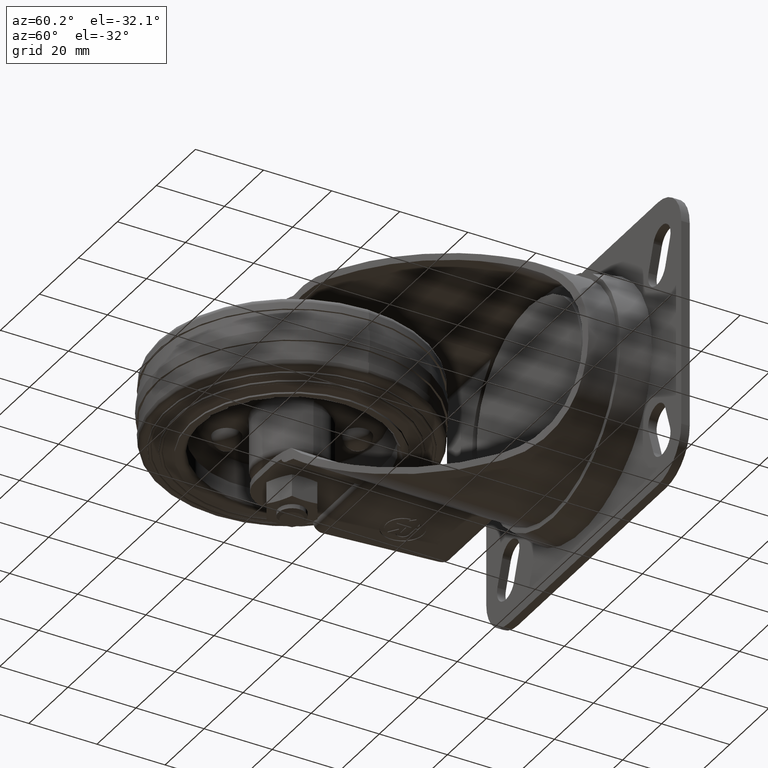
[diagram: clean part render]
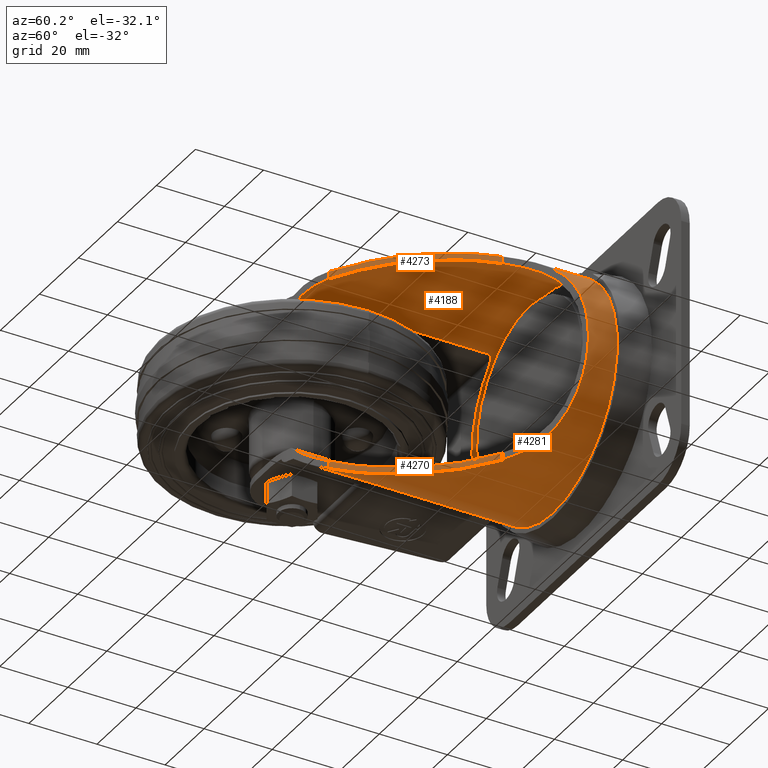
[diagram: same view with one multi-face feature highlighted, each face labeled with its STEP entity id]
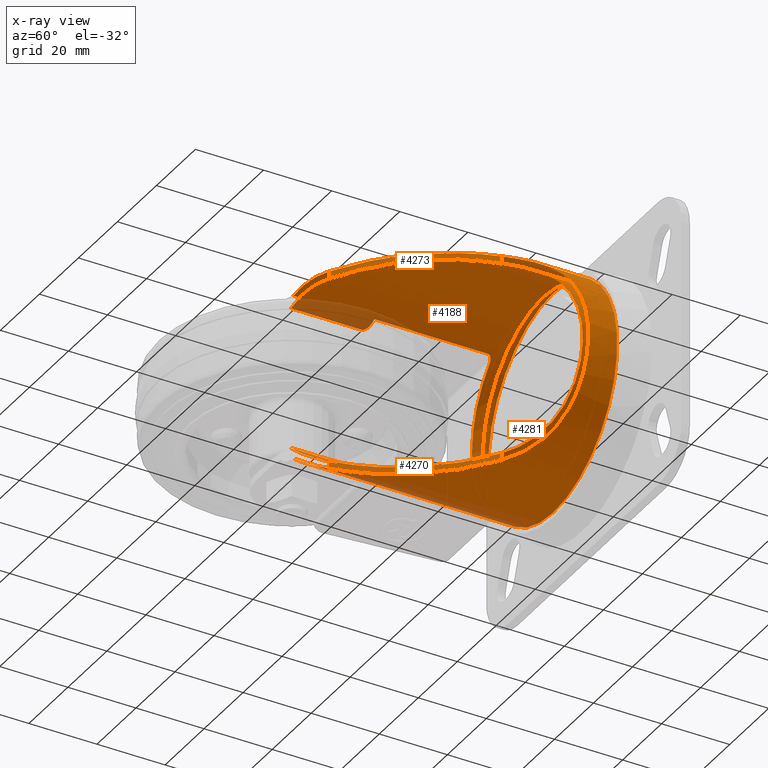
[diagram: x-ray of the same camera — body ghosted, the whole feature saturated]
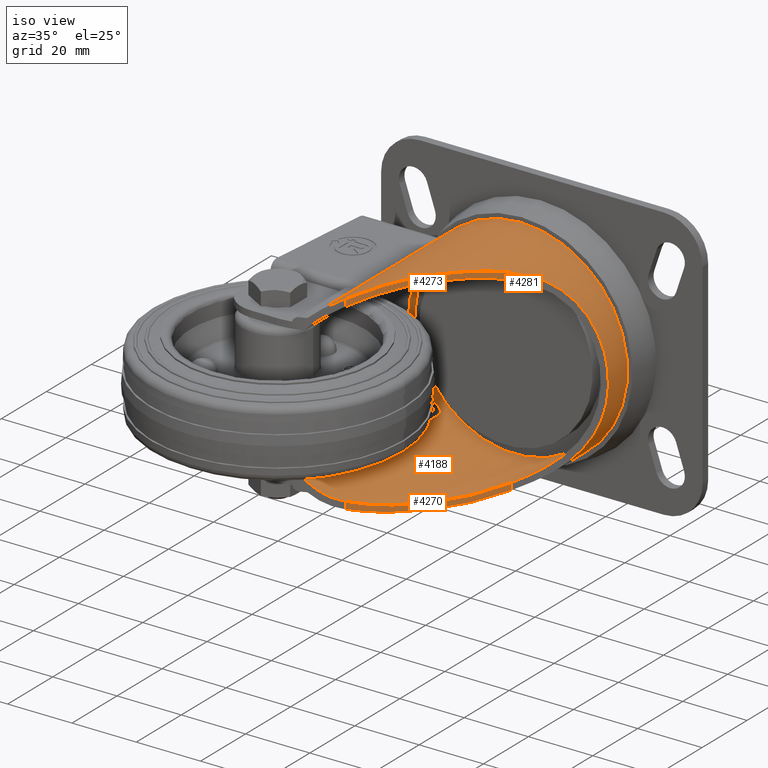
[diagram: same view with one multi-face feature highlighted, each face labeled with its STEP entity id]
A machine part, auxiliary view. The highlighted faces form ONE feature: a stepped (counterbored) hole: 2 coaxial cylindrical walls of radii 31 -> 33 mm joined by 2 annular planar shoulder face(s). The faces share edges in the B-rep.
The next image is the same camera in x-ray: the body ghosted and the whole hole feature saturated, so the bore chain is visible through the body.
A second angle (iso view) of the same feature is appended — it is thin or edge-on in the first view.
Their STEP definitions:
[1] entity #4281 (Cylinder):
#53=ELLIPSE('',#4664,54.834124657042,33.);
#54=ELLIPSE('',#4668,54.834124657042,33.);
#64=B_SPLINE_CURVE_WITH_KNOTS('',3,(#6593,#6594,#6595,#6596,#6597,#6598,
#6599,#6600,#6601,#6602),.UNSPECIFIED.,.F.,.F.,(4,2,2,2,4),(1.56747638439969,
1.63594912843019,1.73042866795403,1.77766843771595,1.82490820747787),
 .UNSPECIFIED.);
#65=B_SPLINE_CURVE_WITH_KNOTS('',3,(#6610,#6611,#6612,#6613,#6614,#6615,
#6616,#6617,#6618,#6619,#6620,#6621),.UNSPECIFIED.,.F.,.F.,(4,2,2,2,2,4),
(0.602938194164341,0.793785492321288,0.984632790478236,1.11757817290808,
1.184050864123,1.25052355533793),.UNSPECIFIED.);
#67=B_SPLINE_CURVE_WITH_KNOTS('',3,(#7041,#7042,#7043,#7044,#7045,#7046,
#7047,#7048,#7049,#7050),.UNSPECIFIED.,.F.,.F.,(4,2,2,2,4),(0.912454103738937,
0.959693873500858,1.00693364326278,1.10141318278662,1.16988592681711),
 .UNSPECIFIED.);
#68=B_SPLINE_CURVE_WITH_KNOTS('',3,(#7057,#7058,#7059,#7060,#7061,#7062,
#7063,#7064,#7065,#7066,#7067,#7068),.UNSPECIFIED.,.F.,.F.,(4,2,2,2,2,4),
(0.,0.0664726912149232,0.132945382429846,0.265890764859693,0.45673806301664,
0.647585361173588),.UNSPECIFIED.);
#69=B_SPLINE_CURVE_WITH_KNOTS('',3,(#7094,#7095,#7096,#7097,#7098,#7099,
#7100,#7101,#7102,#7103,#7104,#7105,#7106,#7107,#7108,#7109,#7110,#7111,
#7112,#7113,#7114,#7115,#7116,#7117,#7118,#7119,#7120,#7121,#7122,#7123,
#7124),.UNSPECIFIED.,.F.,.F.,(4,2,2,2,2,2,2,3,2,2,2,2,2,2,4),(-4.15139420282231,
-4.00994197767611,-3.38997232501408,-2.77000267235205,-2.07750200426404,
-1.38500133617603,-0.692500668088013,0.,0.692500668088012,1.38500133617602,
2.07750200426404,2.77000267235205,3.38997232501408,4.00994197767611,4.15139420282231),
 .UNSPECIFIED.);
#70=B_SPLINE_CURVE_WITH_KNOTS('',3,(#7129,#7130,#7131,#7132,#7133,#7134,
#7135,#7136,#7137,#7138),.UNSPECIFIED.,.F.,.F.,(4,2,2,2,4),(-17.3242357635549,
-17.146377594661,-16.6836098252983,-16.2629584876403,-16.2625434341869),
 .UNSPECIFIED.);
#72=B_SPLINE_CURVE_WITH_KNOTS('',3,(#7178,#7179,#7180,#7181,#7182,#7183,
#7184,#7185),.UNSPECIFIED.,.F.,.F.,(4,2,2,4),(11.277382834563,11.4240468690005,
11.8975363991511,12.3518239304848),.UNSPECIFIED.);
#172=CYLINDRICAL_SURFACE('',#4681,33.);
#290=FACE_BOUND('',#1038,.T.);
#408=CIRCLE('',#4559,33.);
#439=CIRCLE('',#4661,33.);
#691=FACE_OUTER_BOUND('',#1037,.T.);
#1037=EDGE_LOOP('',(#3547));
#1038=EDGE_LOOP('',(#3548,#3549,#3550,#3551,#3552,#3553,#3554,#3555,#3556,
#3557,#3558,#3559,#3560,#3561));
#1252=LINE('',#6646,#1582);
#1430=LINE('',#7173,#1760);
#1431=LINE('',#7176,#1761);
#1432=LINE('',#7186,#1762);
#1582=VECTOR('',#5289,32.93);
#1760=VECTOR('',#5703,21.1300815539318);
#1761=VECTOR('',#5708,21.1300815539318);
#1762=VECTOR('',#5711,32.93);
#1962=VERTEX_POINT('',#6585);
#1965=VERTEX_POINT('',#6591);
#1968=VERTEX_POINT('',#6607);
#1969=VERTEX_POINT('',#6609);
#1975=VERTEX_POINT('',#6638);
#1978=VERTEX_POINT('',#6644);
#2107=VERTEX_POINT('',#7038);
#2108=VERTEX_POINT('',#7040);
#2110=VERTEX_POINT('',#7055);
#2111=VERTEX_POINT('',#7075);
#2112=VERTEX_POINT('',#7077);
#2114=VERTEX_POINT('',#7088);
#2115=VERTEX_POINT('',#7090);
#2117=VERTEX_POINT('',#7128);
#2126=VERTEX_POINT('',#7172);
#2403=EDGE_CURVE('',#1962,#1965,#64,.T.);
#2406=EDGE_CURVE('',#1969,#1968,#65,.T.);
#2413=EDGE_CURVE('',#1975,#1975,#408,.T.);
#2416=EDGE_CURVE('',#1965,#1978,#1252,.T.);
#2606=EDGE_CURVE('',#2108,#2107,#67,.T.);
#2610=EDGE_CURVE('',#1978,#2110,#68,.T.);
#2612=EDGE_CURVE('',#2110,#1969,#439,.T.);
#2615=EDGE_CURVE('',#2112,#2111,#53,.T.);
#2622=EDGE_CURVE('',#2115,#2114,#54,.T.);
#2624=EDGE_CURVE('',#2112,#2114,#69,.T.);
#2626=EDGE_CURVE('',#2117,#2115,#70,.T.);
#2639=EDGE_CURVE('',#1962,#2126,#1430,.F.);
#2641=EDGE_CURVE('',#2117,#2107,#1431,.T.);
#2642=EDGE_CURVE('',#2111,#2126,#72,.T.);
#2643=EDGE_CURVE('',#1968,#2108,#1432,.F.);
#3547=ORIENTED_EDGE('',*,*,#2413,.F.);
#3548=ORIENTED_EDGE('',*,*,#2641,.F.);
#3549=ORIENTED_EDGE('',*,*,#2626,.T.);
#3550=ORIENTED_EDGE('',*,*,#2622,.T.);
#3551=ORIENTED_EDGE('',*,*,#2624,.F.);
#3552=ORIENTED_EDGE('',*,*,#2615,.T.);
#3553=ORIENTED_EDGE('',*,*,#2642,.T.);
#3554=ORIENTED_EDGE('',*,*,#2639,.F.);
#3555=ORIENTED_EDGE('',*,*,#2403,.T.);
#3556=ORIENTED_EDGE('',*,*,#2416,.T.);
#3557=ORIENTED_EDGE('',*,*,#2610,.T.);
#3558=ORIENTED_EDGE('',*,*,#2612,.T.);
#3559=ORIENTED_EDGE('',*,*,#2406,.T.);
#3560=ORIENTED_EDGE('',*,*,#2643,.T.);
#3561=ORIENTED_EDGE('',*,*,#2606,.T.);
#4281=ADVANCED_FACE('',(#691,#290),#172,.T.);
#4559=AXIS2_PLACEMENT_3D('',#6639,#5283,#5284);
#4661=AXIS2_PLACEMENT_3D('',#7071,#5650,#5651);
#4664=AXIS2_PLACEMENT_3D('',#7078,#5658,#5659);
#4668=AXIS2_PLACEMENT_3D('',#7091,#5672,#5673);
#4681=AXIS2_PLACEMENT_3D('',#7177,#5709,#5710);
#5283=DIRECTION('center_axis',(0.,1.,0.));
#5284=DIRECTION('ref_axis',(0.,0.,1.));
#5289=DIRECTION('',(0.,1.,0.));
#5650=DIRECTION('center_axis',(0.,1.,0.));
#5651=DIRECTION('ref_axis',(0.,0.,1.));
#5658=DIRECTION('center_axis',(-0.798635510047293,0.601815023152048,0.));
#5659=DIRECTION('ref_axis',(0.601815023152048,0.798635510047293,0.));
#5672=DIRECTION('center_axis',(-0.798635510047293,0.601815023152048,0.));
#5673=DIRECTION('ref_axis',(0.601815023152048,0.798635510047293,0.));
#5703=DIRECTION('',(0.,1.,0.));
#5708=DIRECTION('',(0.,1.,0.));
#5709=DIRECTION('center_axis',(0.,-1.,0.));
#5710=DIRECTION('ref_axis',(0.,0.,1.));
#5711=DIRECTION('',(0.,1.,0.));
#6585=CARTESIAN_POINT('',(14.8923090305659,13.,-24.5));
#6591=CARTESIAN_POINT('',(16.0536399343466,15.,-25.5));
#6593=CARTESIAN_POINT('Ctrl Pts',(14.8923090305659,13.,-24.5));
#6594=CARTESIAN_POINT('Ctrl Pts',(15.0513096187272,13.1076062000111,-24.6434749333481));
#6595=CARTESIAN_POINT('Ctrl Pts',(15.2019904438239,13.2316473048976,-24.7765956294862));
#6596=CARTESIAN_POINT('Ctrl Pts',(15.527697522146,13.5612580328839,-25.0599857562847));
#6597=CARTESIAN_POINT('Ctrl Pts',(15.7130428305967,13.8058394877291,-25.2169584519767));
#6598=CARTESIAN_POINT('Ctrl Pts',(15.9109033324511,14.2268691524991,-25.3822257932695));
#6599=CARTESIAN_POINT('Ctrl Pts',(15.9638212444205,14.376225663684,-25.425997034931));
#6600=CARTESIAN_POINT('Ctrl Pts',(16.0352202411849,14.6840478966126,-25.4849004613035));
#6601=CARTESIAN_POINT('Ctrl Pts',(16.0536399343466,14.8425341007936,-25.5));
#6602=CARTESIAN_POINT('Ctrl Pts',(16.0536399343466,15.,-25.5));
#6607=CARTESIAN_POINT('',(16.0536399343466,47.93,25.5));
#6609=CARTESIAN_POINT('',(12.4032522475023,51.43,22.));
#6610=CARTESIAN_POINT('Ctrl Pts',(12.4032522475023,51.43,22.));
#6611=CARTESIAN_POINT('Ctrl Pts',(12.8273573545178,51.43,22.4741639244457));
#6612=CARTESIAN_POINT('Ctrl Pts',(13.2996624641728,51.3295755980284,22.9721020504787));
#6613=CARTESIAN_POINT('Ctrl Pts',(14.2237372857723,50.9191934213496,23.8886024811071));
#6614=CARTESIAN_POINT('Ctrl Pts',(14.6754970611177,50.6107411783621,24.3078481919314));
#6615=CARTESIAN_POINT('Ctrl Pts',(15.3151873523587,49.9541275032516,24.8775521420188));
#6616=CARTESIAN_POINT('Ctrl Pts',(15.5743798821929,49.6096568931801,25.0998289309056));
#6617=CARTESIAN_POINT('Ctrl Pts',(15.8522996353517,49.0173836507901,25.3335631408962));
#6618=CARTESIAN_POINT('Ctrl Pts',(15.9268565671292,48.8073626226121,25.3954108901163));
#6619=CARTESIAN_POINT('Ctrl Pts',(16.0275766744835,48.3744746746148,25.4786524031376));
#6620=CARTESIAN_POINT('Ctrl Pts',(16.0536399343466,48.1515756373831,25.5));
#6621=CARTESIAN_POINT('Ctrl Pts',(16.0536399343466,47.93,25.5));
#6638=CARTESIAN_POINT('',(37.,55.4499999999999,33.));
#6639=CARTESIAN_POINT('Origin',(37.,55.4499999999999,0.));
#6644=CARTESIAN_POINT('',(16.0536399343466,47.93,-25.5));
#6646=CARTESIAN_POINT('',(16.0536399343466,69.,-25.5));
#7038=CARTESIAN_POINT('',(14.8923090305659,13.,24.5));
#7040=CARTESIAN_POINT('',(16.0536399343466,15.,25.5));
#7041=CARTESIAN_POINT('Ctrl Pts',(16.0536399343466,15.,25.5));
#7042=CARTESIAN_POINT('Ctrl Pts',(16.0536399343466,14.8425341007936,25.5));
#7043=CARTESIAN_POINT('Ctrl Pts',(16.0352202411849,14.6840478966126,25.4849004613035));
#7044=CARTESIAN_POINT('Ctrl Pts',(15.9638212444205,14.376225663684,25.425997034931));
#7045=CARTESIAN_POINT('Ctrl Pts',(15.9109033324512,14.2268691524991,25.3822257932695));
#7046=CARTESIAN_POINT('Ctrl Pts',(15.7130428305967,13.8058394877291,25.2169584519767));
#7047=CARTESIAN_POINT('Ctrl Pts',(15.527697522146,13.5612580328839,25.0599857562847));
#7048=CARTESIAN_POINT('Ctrl Pts',(15.2019904438239,13.2316473048976,24.7765956294862));
#7049=CARTESIAN_POINT('Ctrl Pts',(15.0513096187272,13.1076062000111,24.6434749333481));
#7050=CARTESIAN_POINT('Ctrl Pts',(14.8923090305659,13.,24.5));
#7055=CARTESIAN_POINT('',(12.4032522475023,51.43,-22.));
#7057=CARTESIAN_POINT('Ctrl Pts',(16.0536399343466,47.93,-25.5));
#7058=CARTESIAN_POINT('Ctrl Pts',(16.0536399343466,48.1515756373831,-25.5));
#7059=CARTESIAN_POINT('Ctrl Pts',(16.0275766744835,48.3744746746148,-25.4786524031376));
#7060=CARTESIAN_POINT('Ctrl Pts',(15.9268565671292,48.8073626226121,-25.3954108901163));
#7061=CARTESIAN_POINT('Ctrl Pts',(15.8522996353517,49.0173836507901,-25.3335631408962));
#7062=CARTESIAN_POINT('Ctrl Pts',(15.5743798821929,49.6096568931801,-25.0998289309056));
#7063=CARTESIAN_POINT('Ctrl Pts',(15.3151873523587,49.9541275032517,-24.8775521420188));
#7064=CARTESIAN_POINT('Ctrl Pts',(14.6754970611177,50.6107411783621,-24.3078481919314));
#7065=CARTESIAN_POINT('Ctrl Pts',(14.2237372857723,50.9191934213497,-23.8886024811071));
#7066=CARTESIAN_POINT('Ctrl Pts',(13.2996624641728,51.3295755980284,-22.9721020504787));
#7067=CARTESIAN_POINT('Ctrl Pts',(12.8273573545178,51.43,-22.4741639244457));
#7068=CARTESIAN_POINT('Ctrl Pts',(12.4032522475023,51.43,-22.));
#7071=CARTESIAN_POINT('Origin',(37.,51.43,0.));
#7075=CARTESIAN_POINT('',(22.4210780398772,-2.03630046304099,-29.6049832710753));
#7077=CARTESIAN_POINT('',(49.2337679481707,33.5453408334737,-30.6485712846506));
#7078=CARTESIAN_POINT('Origin',(37.,17.3105824289481,0.));
#7088=CARTESIAN_POINT('',(49.2337679481707,33.5453408334737,30.6485712846506));
#7090=CARTESIAN_POINT('',(22.4210780398772,-2.03630046304099,29.6049832710753));
#7091=CARTESIAN_POINT('Origin',(37.,17.3105824289481,0.));
#7094=CARTESIAN_POINT('Ctrl Pts',(49.2337679481707,33.5453408334737,-30.6485712846506));
#7095=CARTESIAN_POINT('Ctrl Pts',(49.5135946473426,33.9166834055609,-30.5368748903366));
#7096=CARTESIAN_POINT('Ctrl Pts',(49.7977818209131,34.2788297122042,-30.4189880574541));
#7097=CARTESIAN_POINT('Ctrl Pts',(51.3451820066344,36.176367573455,-29.7506192160327));
#7098=CARTESIAN_POINT('Ctrl Pts',(52.8319025692579,37.7154509306988,-29.010425932987));
#7099=CARTESIAN_POINT('Ctrl Pts',(55.8997133297646,40.3823986589612,-27.1118945557711));
#7100=CARTESIAN_POINT('Ctrl Pts',(57.4750532406901,41.5125637280871,-25.9475064114295));
#7101=CARTESIAN_POINT('Ctrl Pts',(60.4406868200765,43.3699733076409,-23.3217100576361));
#7102=CARTESIAN_POINT('Ctrl Pts',(61.973318275946,44.1588552401739,-21.693443582359));
#7103=CARTESIAN_POINT('Ctrl Pts',(64.7369552998101,45.387996064501,-18.0259101330397));
#7104=CARTESIAN_POINT('Ctrl Pts',(65.9672709791845,45.8312045366472,-15.9871124654048));
#7105=CARTESIAN_POINT('Ctrl Pts',(67.965478118746,46.4736037981635,-11.6546238327596));
#7106=CARTESIAN_POINT('Ctrl Pts',(68.7361727433482,46.6756989336222,-9.35594194255197));
#7107=CARTESIAN_POINT('Ctrl Pts',(69.7534698600325,46.9302876032245,-4.6827900831055));
#7108=CARTESIAN_POINT('Ctrl Pts',(70.,46.9833534481569,-2.30833556029338));
#7109=CARTESIAN_POINT('Ctrl Pts',(70.,46.9833534481569,0.));
#7110=CARTESIAN_POINT('Ctrl Pts',(70.,46.9833534481569,2.30833556029338));
#7111=CARTESIAN_POINT('Ctrl Pts',(69.7534698600325,46.9302876032245,4.6827900831055));
#7112=CARTESIAN_POINT('Ctrl Pts',(68.7361727433482,46.6756989336222,9.35594194255197));
#7113=CARTESIAN_POINT('Ctrl Pts',(67.965478118746,46.4736037981635,11.6546238327596));
#7114=CARTESIAN_POINT('Ctrl Pts',(65.9672709791845,45.8312045366472,15.9871124654048));
#7115=CARTESIAN_POINT('Ctrl Pts',(64.7369552998101,45.387996064501,18.0259101330397));
#7116=CARTESIAN_POINT('Ctrl Pts',(61.973318275946,44.1588552401739,21.693443582359));
#7117=CARTESIAN_POINT('Ctrl Pts',(60.4406868200765,43.3699733076409,23.3217100576361));
#7118=CARTESIAN_POINT('Ctrl Pts',(57.4750532406901,41.5125637280871,25.9475064114295));
#7119=CARTESIAN_POINT('Ctrl Pts',(55.8997133297646,40.3823986589612,27.1118945557711));
#7120=CARTESIAN_POINT('Ctrl Pts',(52.8319025692579,37.7154509306988,29.010425932987));
#7121=CARTESIAN_POINT('Ctrl Pts',(51.3451820066344,36.176367573455,29.7506192160327));
#7122=CARTESIAN_POINT('Ctrl Pts',(49.7977818209131,34.2788297122042,30.4189880574541));
#7123=CARTESIAN_POINT('Ctrl Pts',(49.5135946473426,33.9166834055609,30.5368748903366));
#7124=CARTESIAN_POINT('Ctrl Pts',(49.2337679481707,33.5453408334737,30.6485712846506));
#7128=CARTESIAN_POINT('',(14.8923090305659,-8.13008155393181,24.5));
#7129=CARTESIAN_POINT('Ctrl Pts',(14.8923090305659,-8.13008155393179,24.5));
#7130=CARTESIAN_POINT('Ctrl Pts',(15.3392077464394,-7.92194203375217,24.9032611716395));
#7131=CARTESIAN_POINT('Ctrl Pts',(15.7963453814669,-7.68874974708208,25.293326565371));
#7132=CARTESIAN_POINT('Ctrl Pts',(17.4472097711927,-6.76000356180131,26.6278008014459));
#7133=CARTESIAN_POINT('Ctrl Pts',(18.6473034631414,-5.91062350502256,27.4535448369541));
#7134=CARTESIAN_POINT('Ctrl Pts',(20.6504482007365,-4.13937825051431,28.6870513357246));
#7135=CARTESIAN_POINT('Ctrl Pts',(21.5806525644094,-3.15110547470432,29.1910298761854));
#7136=CARTESIAN_POINT('Ctrl Pts',(22.4194247162229,-2.03849426254639,29.6041690517239));
#7137=CARTESIAN_POINT('Ctrl Pts',(22.4202514222021,-2.03739742174619,29.6045762046546));
#7138=CARTESIAN_POINT('Ctrl Pts',(22.4210780398772,-2.03630046304098,29.6049832710753));
#7172=CARTESIAN_POINT('',(14.8923090305659,-8.13008155393181,-24.5));
#7173=CARTESIAN_POINT('',(14.8923090305659,69.,-24.5));
#7176=CARTESIAN_POINT('',(14.8923090305659,69.,24.5));
#7177=CARTESIAN_POINT('Origin',(37.,69.,0.));
#7178=CARTESIAN_POINT('Ctrl Pts',(22.4210780398772,-2.03630046304098,-29.6049832710753));
#7179=CARTESIAN_POINT('Ctrl Pts',(22.1305415450874,-2.4218554139435,-29.4619090850397));
#7180=CARTESIAN_POINT('Ctrl Pts',(21.8284327178079,-2.79366665332732,-29.3078128288159));
#7181=CARTESIAN_POINT('Ctrl Pts',(20.5116805639052,-4.30248323509306,-28.608238917711));
#7182=CARTESIAN_POINT('Ctrl Pts',(19.4077792825223,-5.295725581527,-27.9523907104896));
#7183=CARTESIAN_POINT('Ctrl Pts',(17.2285475978976,-6.89798410708663,-26.4531138655615));
#7184=CARTESIAN_POINT('Ctrl Pts',(16.0455162761484,-7.5929844573468,-25.540602016696));
#7185=CARTESIAN_POINT('Ctrl Pts',(14.8923090305659,-8.1300815539318,-24.5));
#7186=CARTESIAN_POINT('',(16.0536399343466,69.,25.5));
[2] entity #4188 (Cylinder):
#47=ELLIPSE('',#4537,51.510844374797,31.);
#48=ELLIPSE('',#4538,51.510844374797,31.);
#55=B_SPLINE_CURVE_WITH_KNOTS('',3,(#6430,#6431,#6432,#6433,#6434,#6435,
#6436,#6437,#6438,#6439),.UNSPECIFIED.,.F.,.F.,(4,2,2,2,4),(-1.94785549567806,
-1.85587346051564,-1.76389142535323,-1.62316562990197,-1.48243983445071),
 .UNSPECIFIED.);
#56=B_SPLINE_CURVE_WITH_KNOTS('',3,(#6443,#6444,#6445,#6446,#6447,#6448,
#6449,#6450,#6451,#6452,#6453,#6454),.UNSPECIFIED.,.F.,.F.,(4,2,2,2,2,4),
(-0.833799786604918,-0.749372146135971,-0.664944505667023,-0.608594780161084,
-0.580419917408114,-0.552245054655145),.UNSPECIFIED.);
#57=B_SPLINE_CURVE_WITH_KNOTS('',3,(#6458,#6459,#6460,#6461,#6462,#6463,
#6464,#6465,#6466,#6467,#6468,#6469),.UNSPECIFIED.,.F.,.F.,(4,2,2,2,2,4),
(-1.10449010931029,-1.07631524655732,-1.04814038380435,-0.991790658298413,
-0.907363017829468,-0.822935377360522),.UNSPECIFIED.);
#58=B_SPLINE_CURVE_WITH_KNOTS('',3,(#6473,#6474,#6475,#6476,#6477,#6478,
#6479,#6480,#6481,#6482),.UNSPECIFIED.,.F.,.F.,(4,2,2,2,4),(-1.43934340906638,
-1.29861761361512,-1.15789181816386,-1.06590978300144,-0.973927747839029),
 .UNSPECIFIED.);
#59=B_SPLINE_CURVE_WITH_KNOTS('',3,(#6486,#6487,#6488,#6489,#6490,#6491,
#6492,#6493,#6494,#6495),.UNSPECIFIED.,.F.,.F.,(4,2,2,2,4),(-11.830014746579,
-11.6362772368252,-11.1850044204349,-10.7302177336939,-10.6386906762391),
 .UNSPECIFIED.);
#60=B_SPLINE_CURVE_WITH_KNOTS('',3,(#6499,#6500,#6501,#6502,#6503,#6504,
#6505,#6506,#6507,#6508,#6509,#6510,#6511,#6512,#6513,#6514,#6515,#6516,
#6517,#6518,#6519,#6520,#6521,#6522,#6523,#6524,#6525,#6526,#6527,#6528),
 .UNSPECIFIED.,.F.,.F.,(4,2,2,2,2,2,2,2,2,2,2,2,2,2,4),(-13.7511650327634,
-13.1877461898694,-12.5981166616889,-12.0084871335084,-11.4922875689256,
-10.9760880043428,-10.45988843976,-9.94368887517717,-9.42748931059436,-8.91128974601155,
-8.39509018142874,-7.87889061684593,-7.28926108866544,-6.69963156048495,
-6.13621271759098),.UNSPECIFIED.);
#61=B_SPLINE_CURVE_WITH_KNOTS('',3,(#6531,#6532,#6533,#6534,#6535,#6536,
#6537,#6538,#6539,#6540),.UNSPECIFIED.,.F.,.F.,(4,2,2,2,4),(-17.4588823441734,
-17.3673552867187,-16.9125685999777,-16.4612957835874,-16.2675582738336),
 .UNSPECIFIED.);
#147=CYLINDRICAL_SURFACE('',#4534,31.);
#277=FACE_BOUND('',#932,.T.);
#399=CIRCLE('',#4535,31.);
#400=CIRCLE('',#4536,31.);
#598=FACE_OUTER_BOUND('',#931,.T.);
#931=EDGE_LOOP('',(#3079));
#932=EDGE_LOOP('',(#3080,#3081,#3082,#3083,#3084,#3085,#3086,#3087,#3088,
#3089,#3090,#3091,#3092,#3093));
#1233=LINE('',#6428,#1563);
#1234=LINE('',#6441,#1564);
#1235=LINE('',#6471,#1565);
#1236=LINE('',#6484,#1566);
#1563=VECTOR('',#5220,20.438182658915);
#1564=VECTOR('',#5221,33.43);
#1565=VECTOR('',#5224,33.43);
#1566=VECTOR('',#5225,20.438182658915);
#1938=VERTEX_POINT('',#6424);
#1939=VERTEX_POINT('',#6426);
#1940=VERTEX_POINT('',#6427);
#1941=VERTEX_POINT('',#6429);
#1942=VERTEX_POINT('',#6440);
#1943=VERTEX_POINT('',#6442);
#1944=VERTEX_POINT('',#6455);
#1945=VERTEX_POINT('',#6457);
#1946=VERTEX_POINT('',#6470);
#1947=VERTEX_POINT('',#6472);
#1948=VERTEX_POINT('',#6483);
#1949=VERTEX_POINT('',#6485);
#1950=VERTEX_POINT('',#6496);
#1951=VERTEX_POINT('',#6498);
#1952=VERTEX_POINT('',#6529);
#2372=EDGE_CURVE('',#1938,#1938,#399,.T.);
#2373=EDGE_CURVE('',#1939,#1940,#1233,.F.);
#2374=EDGE_CURVE('',#1939,#1941,#55,.T.);
#2375=EDGE_CURVE('',#1942,#1941,#1234,.F.);
#2376=EDGE_CURVE('',#1943,#1942,#56,.T.);
#2377=EDGE_CURVE('',#1944,#1943,#400,.T.);
#2378=EDGE_CURVE('',#1945,#1944,#57,.T.);
#2379=EDGE_CURVE('',#1946,#1945,#1235,.T.);
#2380=EDGE_CURVE('',#1946,#1947,#58,.T.);
#2381=EDGE_CURVE('',#1948,#1947,#1236,.T.);
#2382=EDGE_CURVE('',#1948,#1949,#59,.T.);
#2383=EDGE_CURVE('',#1949,#1950,#47,.F.);
#2384=EDGE_CURVE('',#1951,#1950,#60,.T.);
#2385=EDGE_CURVE('',#1951,#1952,#48,.F.);
#2386=EDGE_CURVE('',#1952,#1940,#61,.T.);
#3079=ORIENTED_EDGE('',*,*,#2372,.T.);
#3080=ORIENTED_EDGE('',*,*,#2373,.F.);
#3081=ORIENTED_EDGE('',*,*,#2374,.T.);
#3082=ORIENTED_EDGE('',*,*,#2375,.F.);
#3083=ORIENTED_EDGE('',*,*,#2376,.F.);
#3084=ORIENTED_EDGE('',*,*,#2377,.F.);
#3085=ORIENTED_EDGE('',*,*,#2378,.F.);
#3086=ORIENTED_EDGE('',*,*,#2379,.F.);
#3087=ORIENTED_EDGE('',*,*,#2380,.T.);
#3088=ORIENTED_EDGE('',*,*,#2381,.F.);
#3089=ORIENTED_EDGE('',*,*,#2382,.T.);
#3090=ORIENTED_EDGE('',*,*,#2383,.T.);
#3091=ORIENTED_EDGE('',*,*,#2384,.F.);
#3092=ORIENTED_EDGE('',*,*,#2385,.T.);
#3093=ORIENTED_EDGE('',*,*,#2386,.T.);
#4188=ADVANCED_FACE('',(#598,#277),#147,.F.);
#4534=AXIS2_PLACEMENT_3D('',#6423,#5216,#5217);
#4535=AXIS2_PLACEMENT_3D('',#6425,#5218,#5219);
#4536=AXIS2_PLACEMENT_3D('',#6456,#5222,#5223);
#4537=AXIS2_PLACEMENT_3D('',#6497,#5226,#5227);
#4538=AXIS2_PLACEMENT_3D('',#6530,#5228,#5229);
#5216=DIRECTION('center_axis',(0.,-1.,0.));
#5217=DIRECTION('ref_axis',(0.,0.,1.));
#5218=DIRECTION('center_axis',(0.,1.,0.));
#5219=DIRECTION('ref_axis',(0.,0.,1.));
#5220=DIRECTION('',(0.,1.,0.));
#5221=DIRECTION('',(0.,1.,0.));
#5222=DIRECTION('center_axis',(0.,1.,0.));
#5223=DIRECTION('ref_axis',(0.,0.,1.));
#5224=DIRECTION('',(0.,1.,0.));
#5225=DIRECTION('',(0.,1.,0.));
#5226=DIRECTION('center_axis',(-0.798635510047293,0.601815023152048,0.));
#5227=DIRECTION('ref_axis',(0.601815023152048,0.798635510047293,0.));
#5228=DIRECTION('center_axis',(-0.798635510047293,0.601815023152048,0.));
#5229=DIRECTION('ref_axis',(0.601815023152048,0.798635510047293,0.));
#6423=CARTESIAN_POINT('Origin',(37.,52.5,0.));
#6424=CARTESIAN_POINT('',(37.,52.5,31.));
#6425=CARTESIAN_POINT('Origin',(37.,52.5,0.));
#6426=CARTESIAN_POINT('',(14.1964914980172,12.,21.));
#6427=CARTESIAN_POINT('',(14.1964914980172,-8.438182658915,21.));
#6428=CARTESIAN_POINT('',(14.1964914980172,52.5,21.));
#6429=CARTESIAN_POINT('',(16.7824333808443,14.5,23.5));
#6430=CARTESIAN_POINT('Ctrl Pts',(14.1964914980172,12.,21.));
#6431=CARTESIAN_POINT('Ctrl Pts',(14.1964914980172,12.3066067838747,21.));
#6432=CARTESIAN_POINT('Ctrl Pts',(14.2515351656245,12.6247603363522,21.0601620265708));
#6433=CARTESIAN_POINT('Ctrl Pts',(14.4590309256248,13.1933374244201,21.2821002680319));
#6434=CARTESIAN_POINT('Ctrl Pts',(14.6113109121009,13.4441630597249,21.4430061930044));
#6435=CARTESIAN_POINT('Ctrl Pts',(15.0283826641484,13.9379465540951,21.8718748043108));
#6436=CARTESIAN_POINT('Ctrl Pts',(15.348763703284,14.1601981186053,22.1913372783994));
#6437=CARTESIAN_POINT('Ctrl Pts',(16.0478562850395,14.4412834935817,22.8525525578557));
#6438=CARTESIAN_POINT('Ctrl Pts',(16.4268359407255,14.5,23.194071704885));
#6439=CARTESIAN_POINT('Ctrl Pts',(16.7824333808443,14.5,23.5));
#6440=CARTESIAN_POINT('',(16.7824333808443,47.93,23.5));
#6441=CARTESIAN_POINT('',(16.7824333808443,52.5,23.5));
#6442=CARTESIAN_POINT('',(15.1596703321584,49.43,22.));
#6443=CARTESIAN_POINT('Ctrl Pts',(15.1596703321584,49.43,22.));
#6444=CARTESIAN_POINT('Ctrl Pts',(15.3593916321925,49.43,22.1982717742925));
#6445=CARTESIAN_POINT('Ctrl Pts',(15.5785164866178,49.3890087281569,22.4098967496378));
#6446=CARTESIAN_POINT('Ctrl Pts',(15.9998033389226,49.2139176853833,22.8051566195207));
#6447=CARTESIAN_POINT('Ctrl Pts',(16.2020281403213,49.0804299883583,22.9889954439941));
#6448=CARTESIAN_POINT('Ctrl Pts',(16.4790385051194,48.7932862822675,23.2360110588186));
#6449=CARTESIAN_POINT('Ctrl Pts',(16.5868012698663,48.6459964630051,23.3304838024679));
#6450=CARTESIAN_POINT('Ctrl Pts',(16.7008940182259,48.3929145855437,23.4296571767192));
#6451=CARTESIAN_POINT('Ctrl Pts',(16.7312291656056,48.303219948962,23.4558654358887));
#6452=CARTESIAN_POINT('Ctrl Pts',(16.7719990163386,48.1187204725672,23.4910351392211));
#6453=CARTESIAN_POINT('Ctrl Pts',(16.7824333808443,48.0239162091766,23.5));
#6454=CARTESIAN_POINT('Ctrl Pts',(16.7824333808443,47.93,23.5));
#6455=CARTESIAN_POINT('',(15.1596703321585,49.43,-22.));
#6456=CARTESIAN_POINT('Origin',(37.,49.43,0.));
#6457=CARTESIAN_POINT('',(16.7824333808443,47.93,-23.5));
#6458=CARTESIAN_POINT('Ctrl Pts',(16.7824333808443,47.93,-23.5));
#6459=CARTESIAN_POINT('Ctrl Pts',(16.7824333808443,48.0239162091766,-23.5));
#6460=CARTESIAN_POINT('Ctrl Pts',(16.7719990163386,48.1187204725672,-23.4910351392211));
#6461=CARTESIAN_POINT('Ctrl Pts',(16.7312291656056,48.303219948962,-23.4558654358887));
#6462=CARTESIAN_POINT('Ctrl Pts',(16.7008940182259,48.3929145855437,-23.4296571767192));
#6463=CARTESIAN_POINT('Ctrl Pts',(16.5868012698663,48.6459964630051,-23.3304838024679));
#6464=CARTESIAN_POINT('Ctrl Pts',(16.4790385051194,48.7932862822675,-23.2360110588186));
#6465=CARTESIAN_POINT('Ctrl Pts',(16.2020281403213,49.0804299883583,-22.9889954439941));
#6466=CARTESIAN_POINT('Ctrl Pts',(15.9998033389226,49.2139176853833,-22.8051566195207));
#6467=CARTESIAN_POINT('Ctrl Pts',(15.5785164866178,49.3890087281569,-22.4098967496378));
#6468=CARTESIAN_POINT('Ctrl Pts',(15.3593916321925,49.43,-22.1982717742925));
#6469=CARTESIAN_POINT('Ctrl Pts',(15.1596703321584,49.43,-22.));
#6470=CARTESIAN_POINT('',(16.7824333808443,14.5,-23.5));
#6471=CARTESIAN_POINT('',(16.7824333808443,52.5,-23.5));
#6472=CARTESIAN_POINT('',(14.1964914980172,12.,-21.));
#6473=CARTESIAN_POINT('Ctrl Pts',(16.7824333808443,14.5,-23.5));
#6474=CARTESIAN_POINT('Ctrl Pts',(16.4268359407255,14.5,-23.194071704885));
#6475=CARTESIAN_POINT('Ctrl Pts',(16.0478562850395,14.4412834935817,-22.8525525578557));
#6476=CARTESIAN_POINT('Ctrl Pts',(15.348763703284,14.1601981186053,-22.1913372783994));
#6477=CARTESIAN_POINT('Ctrl Pts',(15.0283826641484,13.9379465540951,-21.8718748043108));
#6478=CARTESIAN_POINT('Ctrl Pts',(14.6113109121009,13.4441630597249,-21.4430061930044));
#6479=CARTESIAN_POINT('Ctrl Pts',(14.4590309256248,13.1933374244201,-21.2821002680319));
#6480=CARTESIAN_POINT('Ctrl Pts',(14.2515351656245,12.6247603363522,-21.0601620265708));
#6481=CARTESIAN_POINT('Ctrl Pts',(14.1964914980172,12.3066067838747,-21.));
#6482=CARTESIAN_POINT('Ctrl Pts',(14.1964914980172,12.,-21.));
#6483=CARTESIAN_POINT('',(14.1964914980172,-8.438182658915,-21.));
#6484=CARTESIAN_POINT('',(14.1964914980172,52.5,-21.));
#6485=CARTESIAN_POINT('',(22.4210780398772,-2.03630046304099,-27.3579062517702));
#6486=CARTESIAN_POINT('Ctrl Pts',(14.1964914980172,-8.438182658915,-21.));
#6487=CARTESIAN_POINT('Ctrl Pts',(14.6476760158198,-8.24858515347381,-21.4899328565559));
#6488=CARTESIAN_POINT('Ctrl Pts',(15.1165766477875,-8.03186347330115,-21.966978937378));
#6489=CARTESIAN_POINT('Ctrl Pts',(16.6999323278707,-7.2179233143681,-23.4787810065739));
#6490=CARTESIAN_POINT('Ctrl Pts',(17.8449104706888,-6.48739064648978,-24.4066285087044));
#6491=CARTESIAN_POINT('Ctrl Pts',(19.9056646640101,-4.85406382278779,-25.8922710220303));
#6492=CARTESIAN_POINT('Ctrl Pts',(20.9327726980953,-3.86933632412666,-26.5328557945161));
#6493=CARTESIAN_POINT('Ctrl Pts',(22.0562106477492,-2.50929998506179,-27.1611793908239));
#6494=CARTESIAN_POINT('Ctrl Pts',(22.2407695283651,-2.27557793953723,-27.2618205464575));
#6495=CARTESIAN_POINT('Ctrl Pts',(22.4210780398772,-2.036300463041,-27.3579062517702));
#6496=CARTESIAN_POINT('',(49.2337679481707,33.5453408334737,-28.4839414721754));
#6497=CARTESIAN_POINT('Origin',(37.,17.310582428948,0.));
#6498=CARTESIAN_POINT('',(49.2337679481707,33.5453408334737,28.4839414721754));
#6499=CARTESIAN_POINT('Ctrl Pts',(49.2337679481707,33.5453408334737,28.4839414721754));
#6500=CARTESIAN_POINT('Ctrl Pts',(50.3571341388777,35.0360981196349,28.0014590421593));
#6501=CARTESIAN_POINT('Ctrl Pts',(51.5662087217737,36.3964652889481,27.4023568869517));
#6502=CARTESIAN_POINT('Ctrl Pts',(54.0954587320557,38.8722652628061,25.9037710914563));
#6503=CARTESIAN_POINT('Ctrl Pts',(55.5568065051135,40.095048964292,24.9026439580897));
#6504=CARTESIAN_POINT('Ctrl Pts',(58.4156861340234,42.1480151772936,22.491446730669));
#6505=CARTESIAN_POINT('Ctrl Pts',(59.807329393165,42.9826389775964,21.0781828608989));
#6506=CARTESIAN_POINT('Ctrl Pts',(62.0185855743519,44.1670881743946,18.3773057594851));
#6507=CARTESIAN_POINT('Ctrl Pts',(63.0061092651461,44.6298763448291,16.964470485087));
#6508=CARTESIAN_POINT('Ctrl Pts',(64.7624915170865,45.3775460947313,13.9052164249045));
#6509=CARTESIAN_POINT('Ctrl Pts',(65.5311019584105,45.6637022899578,12.2589668395505));
#6510=CARTESIAN_POINT('Ctrl Pts',(66.7686102943684,46.0944665475953,8.83945848663497));
#6511=CARTESIAN_POINT('Ctrl Pts',(67.238492959243,46.2402046490898,7.06368495517162));
#6512=CARTESIAN_POINT('Ctrl Pts',(67.8542065911827,46.4267461020353,3.50428843812489));
#6513=CARTESIAN_POINT('Ctrl Pts',(68.,46.4676688729775,1.72066521527604));
#6514=CARTESIAN_POINT('Ctrl Pts',(68.,46.4676688729775,-1.72066521527604));
#6515=CARTESIAN_POINT('Ctrl Pts',(67.8542065911827,46.4267461020353,-3.50428843812487));
#6516=CARTESIAN_POINT('Ctrl Pts',(67.238492959243,46.2402046490898,-7.0636849551716));
#6517=CARTESIAN_POINT('Ctrl Pts',(66.7686102943685,46.0944665475953,-8.83945848663495));
#6518=CARTESIAN_POINT('Ctrl Pts',(65.5311019584105,45.6637022899578,-12.2589668395505));
#6519=CARTESIAN_POINT('Ctrl Pts',(64.7624915170865,45.3775460947313,-13.9052164249045));
#6520=CARTESIAN_POINT('Ctrl Pts',(63.0061092651461,44.6298763448291,-16.964470485087));
#6521=CARTESIAN_POINT('Ctrl Pts',(62.0185855743519,44.1670881743946,-18.3773057594851));
#6522=CARTESIAN_POINT('Ctrl Pts',(59.807329393165,42.9826389775964,-21.0781828608989));
#6523=CARTESIAN_POINT('Ctrl Pts',(58.4156861340234,42.1480151772936,-22.491446730669));
#6524=CARTESIAN_POINT('Ctrl Pts',(55.5568065051135,40.095048964292,-24.9026439580897));
#6525=CARTESIAN_POINT('Ctrl Pts',(54.0954587320557,38.8722652628061,-25.9037710914563));
#6526=CARTESIAN_POINT('Ctrl Pts',(51.5662087217737,36.3964652889481,-27.4023568869517));
#6527=CARTESIAN_POINT('Ctrl Pts',(50.3571341388777,35.0360981196349,-28.0014590421593));
#6528=CARTESIAN_POINT('Ctrl Pts',(49.2337679481707,33.5453408334737,-28.4839414721754));
#6529=CARTESIAN_POINT('',(22.4210780398772,-2.03630046304099,27.3579062517702));
#6530=CARTESIAN_POINT('Origin',(37.,17.310582428948,0.));
#6531=CARTESIAN_POINT('Ctrl Pts',(22.4210780398772,-2.036300463041,27.3579062517702));
#6532=CARTESIAN_POINT('Ctrl Pts',(22.2407695283651,-2.27557793953723,27.2618205464575));
#6533=CARTESIAN_POINT('Ctrl Pts',(22.0562106477492,-2.50929998506179,27.1611793908239));
#6534=CARTESIAN_POINT('Ctrl Pts',(20.9327726980953,-3.86933632412666,26.5328557945161));
#6535=CARTESIAN_POINT('Ctrl Pts',(19.9056646640101,-4.85406382278778,25.8922710220303));
#6536=CARTESIAN_POINT('Ctrl Pts',(17.8449104706888,-6.48739064648977,24.4066285087044));
#6537=CARTESIAN_POINT('Ctrl Pts',(16.6999323278707,-7.2179233143681,23.4787810065739));
#6538=CARTESIAN_POINT('Ctrl Pts',(15.1165766477875,-8.03186347330114,21.9669789373781));
#6539=CARTESIAN_POINT('Ctrl Pts',(14.6476760158198,-8.2485851534738,21.4899328565559));
#6540=CARTESIAN_POINT('Ctrl Pts',(14.1964914980172,-8.43818265891501,21.));
[3] entity #4273 (Plane):
#48=ELLIPSE('',#4538,51.510844374797,31.);
#54=ELLIPSE('',#4668,54.834124657042,33.);
#683=FACE_OUTER_BOUND('',#1029,.T.);
#1029=EDGE_LOOP('',(#3511,#3512,#3513,#3514));
#1420=LINE('',#7089,#1750);
#1421=LINE('',#7092,#1751);
#1750=VECTOR('',#5671,2.1646298124752);
#1751=VECTOR('',#5674,2.2470770193051);
#1951=VERTEX_POINT('',#6498);
#1952=VERTEX_POINT('',#6529);
#2114=VERTEX_POINT('',#7088);
#2115=VERTEX_POINT('',#7090);
#2385=EDGE_CURVE('',#1951,#1952,#48,.F.);
#2621=EDGE_CURVE('',#2114,#1951,#1420,.T.);
#2622=EDGE_CURVE('',#2115,#2114,#54,.T.);
#2623=EDGE_CURVE('',#2115,#1952,#1421,.T.);
#3511=ORIENTED_EDGE('',*,*,#2385,.F.);
#3512=ORIENTED_EDGE('',*,*,#2621,.F.);
#3513=ORIENTED_EDGE('',*,*,#2622,.F.);
#3514=ORIENTED_EDGE('',*,*,#2623,.T.);
#4057=PLANE('',#4667);
#4273=ADVANCED_FACE('',(#683),#4057,.F.);
#4538=AXIS2_PLACEMENT_3D('',#6530,#5228,#5229);
#4667=AXIS2_PLACEMENT_3D('',#7087,#5669,#5670);
#4668=AXIS2_PLACEMENT_3D('',#7091,#5672,#5673);
#5228=DIRECTION('center_axis',(-0.798635510047293,0.601815023152048,0.));
#5229=DIRECTION('ref_axis',(0.601815023152048,0.798635510047293,0.));
#5669=DIRECTION('center_axis',(-0.798635510047293,0.601815023152048,0.));
#5670=DIRECTION('ref_axis',(-0.601815023152049,-0.798635510047293,0.));
#5671=DIRECTION('',(0.,0.,-1.));
#5672=DIRECTION('center_axis',(-0.798635510047293,0.601815023152048,0.));
#5673=DIRECTION('ref_axis',(0.601815023152048,0.798635510047293,0.));
#5674=DIRECTION('',(0.,0.,-1.));
#6498=CARTESIAN_POINT('',(49.2337679481707,33.5453408334737,28.4839414721754));
#6529=CARTESIAN_POINT('',(22.4210780398772,-2.03630046304099,27.3579062517702));
#6530=CARTESIAN_POINT('Origin',(37.,17.310582428948,0.));
#7087=CARTESIAN_POINT('Origin',(22.4210780398772,-2.03630046304096,50.));
#7088=CARTESIAN_POINT('',(49.2337679481707,33.5453408334737,30.6485712846506));
#7089=CARTESIAN_POINT('',(49.2337679481707,33.5453408334737,50.));
#7090=CARTESIAN_POINT('',(22.4210780398772,-2.03630046304099,29.6049832710753));
#7091=CARTESIAN_POINT('Origin',(37.,17.3105824289481,0.));
#7092=CARTESIAN_POINT('',(22.4210780398772,-2.03630046304099,50.));
[4] entity #4270 (Plane):
#47=ELLIPSE('',#4537,51.510844374797,31.);
#53=ELLIPSE('',#4664,54.834124657042,33.);
#680=FACE_OUTER_BOUND('',#1026,.T.);
#1026=EDGE_LOOP('',(#3495,#3496,#3497,#3498));
#1414=LINE('',#7076,#1744);
#1415=LINE('',#7079,#1745);
#1744=VECTOR('',#5657,2.24707701930509);
#1745=VECTOR('',#5660,2.16462981247521);
#1949=VERTEX_POINT('',#6485);
#1950=VERTEX_POINT('',#6496);
#2111=VERTEX_POINT('',#7075);
#2112=VERTEX_POINT('',#7077);
#2383=EDGE_CURVE('',#1949,#1950,#47,.F.);
#2614=EDGE_CURVE('',#1949,#2111,#1414,.T.);
#2615=EDGE_CURVE('',#2112,#2111,#53,.T.);
#2616=EDGE_CURVE('',#1950,#2112,#1415,.T.);
#3495=ORIENTED_EDGE('',*,*,#2383,.F.);
#3496=ORIENTED_EDGE('',*,*,#2614,.T.);
#3497=ORIENTED_EDGE('',*,*,#2615,.F.);
#3498=ORIENTED_EDGE('',*,*,#2616,.F.);
#4054=PLANE('',#4663);
#4270=ADVANCED_FACE('',(#680),#4054,.F.);
#4537=AXIS2_PLACEMENT_3D('',#6497,#5226,#5227);
#4663=AXIS2_PLACEMENT_3D('',#7074,#5655,#5656);
#4664=AXIS2_PLACEMENT_3D('',#7078,#5658,#5659);
#5226=DIRECTION('center_axis',(-0.798635510047293,0.601815023152048,0.));
#5227=DIRECTION('ref_axis',(0.601815023152048,0.798635510047293,0.));
#5655=DIRECTION('center_axis',(-0.798635510047293,0.601815023152048,0.));
#5656=DIRECTION('ref_axis',(-0.601815023152049,-0.798635510047293,0.));
#5657=DIRECTION('',(0.,0.,-1.));
#5658=DIRECTION('center_axis',(-0.798635510047293,0.601815023152048,0.));
#5659=DIRECTION('ref_axis',(0.601815023152048,0.798635510047293,0.));
#5660=DIRECTION('',(0.,0.,-1.));
#6485=CARTESIAN_POINT('',(22.4210780398772,-2.03630046304099,-27.3579062517702));
#6496=CARTESIAN_POINT('',(49.2337679481707,33.5453408334737,-28.4839414721754));
#6497=CARTESIAN_POINT('Origin',(37.,17.310582428948,0.));
#7074=CARTESIAN_POINT('Origin',(22.4210780398772,-2.03630046304096,50.));
#7075=CARTESIAN_POINT('',(22.4210780398772,-2.03630046304099,-29.6049832710753));
#7076=CARTESIAN_POINT('',(22.4210780398772,-2.03630046304099,50.));
#7077=CARTESIAN_POINT('',(49.2337679481707,33.5453408334737,-30.6485712846506));
#7078=CARTESIAN_POINT('Origin',(37.,17.3105824289481,0.));
#7079=CARTESIAN_POINT('',(49.2337679481707,33.5453408334737,50.));